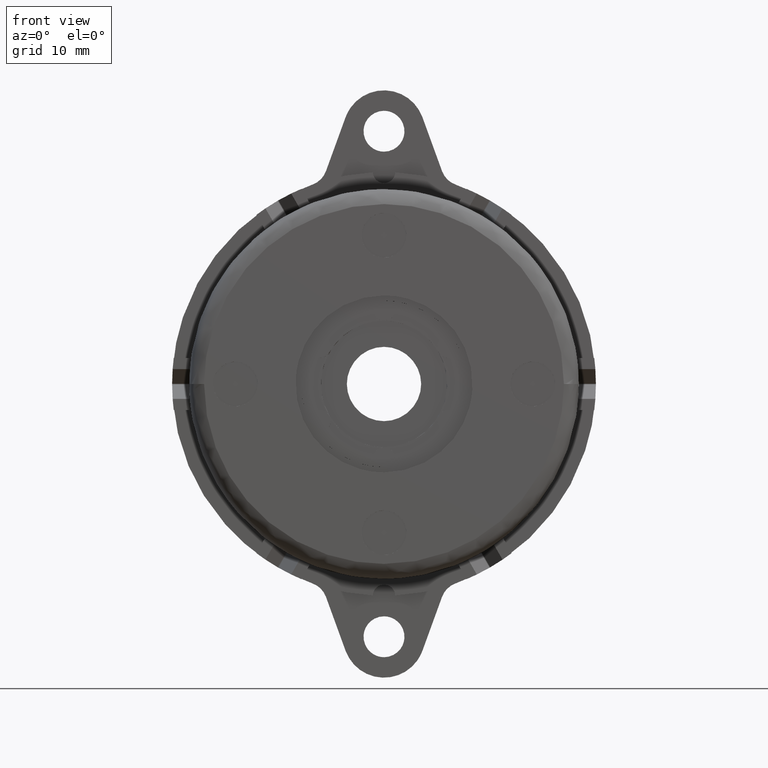
[diagram: clean part render]
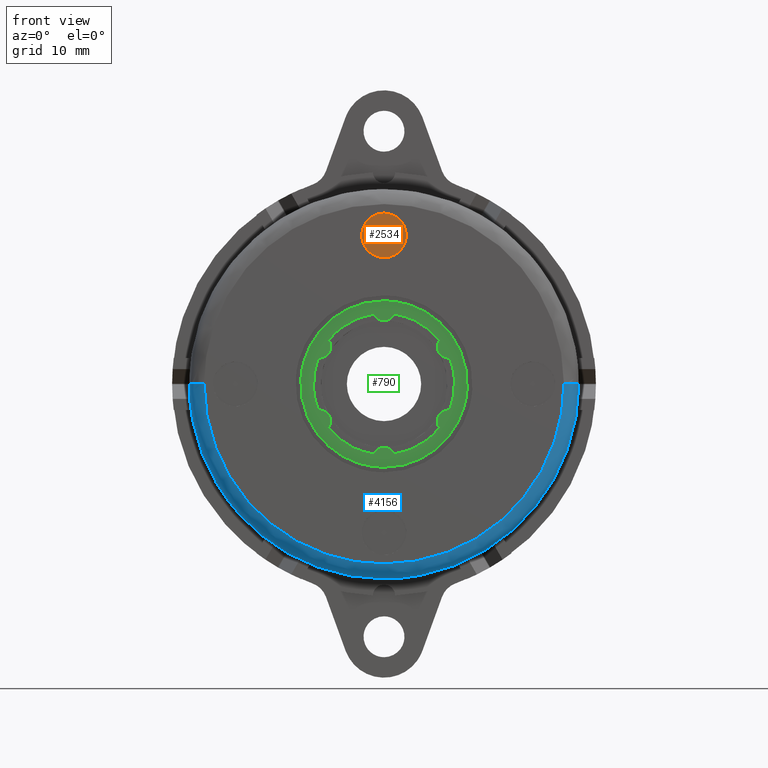
[diagram: same view with three faces highlighted in distinct colors, each labeled with its STEP entity id]
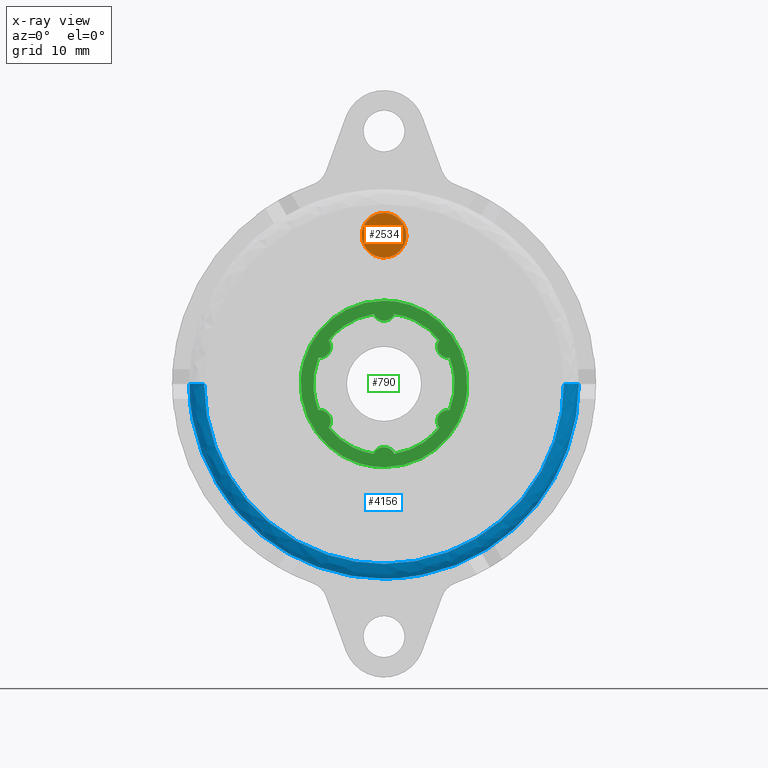
[diagram: x-ray of the same camera — body ghosted, the three highlighted faces saturated]
A machine part, front view with three faces highlighted in distinct colors.
The next image is the same camera in x-ray (body ghosted, the three faces saturated) — at least one of them is partly hidden behind the body in this view.
Their STEP definitions:

[orange] entity #2534 — the highlighted face is a freeform B-spline surface patch.
#2463=CARTESIAN_POINT('',(-3.299574351728865,-13.699999999999999,23.299699988370840));
#2464=CARTESIAN_POINT('',(3.299574137152144,-13.699999999999999,23.299699988370840));
#2465=CARTESIAN_POINT('',(-3.299574351728865,-13.699999999999999,16.700299850696620));
#2466=CARTESIAN_POINT('',(3.299574137152144,-13.699999999999999,16.700299850696620));
#2467=B_SPLINE_SURFACE_WITH_KNOTS('',1,1,((#2463,#2465),(#2464,#2466)),.UNSPECIFIED.,.F.,.F.,.U.,(2,2),(2,2),(0.0,6.599148488881010),(0.0,6.599400137674213),.UNSPECIFIED.);
#2468=CARTESIAN_POINT('',(0.0,-13.699999999999999,23.0));
#2469=VERTEX_POINT('',#2468);
#2470=CARTESIAN_POINT('',(-2.999885769189263,-13.699999999999999,19.973820393132449));
#2471=VERTEX_POINT('',#2470);
#2472=CARTESIAN_POINT('',(0.0,-13.699999999999999,23.0));
#2473=CARTESIAN_POINT('',(-3.0,-13.700000000000003,22.999999999999993));
#2474=CARTESIAN_POINT('',(-3.0,-13.699999999999999,20.0));
#2475=CARTESIAN_POINT('',(-3.000000000000000,-13.700000000000006,19.986909947351677));
#2476=CARTESIAN_POINT('',(-2.999885769189264,-13.699999999999999,19.973820393132456));
#2484=(BOUNDED_CURVE()B_SPLINE_CURVE(2,(#2472,#2473,#2474,#2475,#2476),.UNSPECIFIED.,.F.,.U.)B_SPLINE_CURVE_WITH_KNOTS((3,2,3),(0.0,0.250000000000000,0.251539894356854),.UNSPECIFIED.)CURVE()GEOMETRIC_REPRESENTATION_ITEM()RATIONAL_B_SPLINE_CURVE((1.0,0.707106781186548,1.0,0.998195901540753,0.996414028049799))REPRESENTATION_ITEM(''));
#2485=EDGE_CURVE('',#2469,#2471,#2484,.T.);
#2486=ORIENTED_EDGE('',*,*,#2485,.T.);
#2487=CARTESIAN_POINT('',(0.0,-13.699999999999999,17.0));
#2488=VERTEX_POINT('',#2487);
#2489=CARTESIAN_POINT('',(-2.999885769189264,-13.699999999999999,19.973820393132456));
#2490=CARTESIAN_POINT('',(-2.973933631415720,-13.700000000000001,17.0));
#2491=CARTESIAN_POINT('',(0.0,-13.699999999999999,17.0));
#2499=(BOUNDED_CURVE()B_SPLINE_CURVE(2,(#2489,#2490,#2491),.UNSPECIFIED.,.F.,.U.)B_SPLINE_CURVE_WITH_KNOTS((3,3),(0.251539894356854,0.500000000000000),.UNSPECIFIED.)CURVE()GEOMETRIC_REPRESENTATION_ITEM()RATIONAL_B_SPLINE_CURVE((0.996414028049799,0.708910879645795,1.0))REPRESENTATION_ITEM(''));
#2500=EDGE_CURVE('',#2471,#2488,#2499,.T.);
#2501=ORIENTED_EDGE('',*,*,#2500,.T.);
#2502=CARTESIAN_POINT('',(2.999885769189263,-13.699999999999999,20.026179606867551));
#2503=VERTEX_POINT('',#2502);
#2504=CARTESIAN_POINT('',(0.0,-13.699999999999999,17.0));
#2505=CARTESIAN_POINT('',(3.0,-13.700000000000003,17.000000000000004));
#2506=CARTESIAN_POINT('',(3.0,-13.699999999999999,20.0));
#2507=CARTESIAN_POINT('',(3.0,-13.700000000000003,20.013090052648330));
#2508=CARTESIAN_POINT('',(2.999885769189263,-13.700000000000005,20.026179606867554));
#2516=(BOUNDED_CURVE()B_SPLINE_CURVE(2,(#2504,#2505,#2506,#2507,#2508),.UNSPECIFIED.,.F.,.U.)B_SPLINE_CURVE_WITH_KNOTS((3,2,3),(0.500000000000000,0.750000000000000,0.751539894356855),.UNSPECIFIED.)CURVE()GEOMETRIC_REPRESENTATION_ITEM()RATIONAL_B_SPLINE_CURVE((1.0,0.707106781186548,1.0,0.998195901540752,0.996414028049798))REPRESENTATION_ITEM(''));
#2517=EDGE_CURVE('',#2488,#2503,#2516,.T.);
#2518=ORIENTED_EDGE('',*,*,#2517,.T.);
#2519=CARTESIAN_POINT('',(2.999885769189264,-13.699999999999996,20.026179606867558));
#2520=CARTESIAN_POINT('',(2.973933631415710,-13.700000000000003,22.999999999999996));
#2521=CARTESIAN_POINT('',(0.0,-13.699999999999999,23.0));
#2529=(BOUNDED_CURVE()B_SPLINE_CURVE(2,(#2519,#2520,#2521),.UNSPECIFIED.,.F.,.U.)B_SPLINE_CURVE_WITH_KNOTS((3,3),(0.751539894356855,1.0),.UNSPECIFIED.)CURVE()GEOMETRIC_REPRESENTATION_ITEM()RATIONAL_B_SPLINE_CURVE((0.996414028049797,0.708910879645795,1.0))REPRESENTATION_ITEM(''));
#2530=EDGE_CURVE('',#2503,#2469,#2529,.T.);
#2531=ORIENTED_EDGE('',*,*,#2530,.T.);
#2532=EDGE_LOOP('',(#2486,#2501,#2518,#2531));
#2533=FACE_OUTER_BOUND('',#2532,.T.);
#2534=ADVANCED_FACE('',(#2533),#2467,.F.);

[blue] entity #4156 — the highlighted face is a freeform B-spline surface patch.
#3880=CARTESIAN_POINT('',(-24.200000000614182,-13.800000000000001,-1.770490E-015));
#3881=VERTEX_POINT('',#3880);
#3895=CARTESIAN_POINT('',(0.0,-13.800000000000001,-24.199999999999999));
#3896=VERTEX_POINT('',#3895);
#3897=CARTESIAN_POINT('',(-24.200000000614182,-13.800000000000001,-1.770490E-015));
#3898=CARTESIAN_POINT('',(-24.200000000307082,-13.799999999999999,-24.199999999999996));
#3899=CARTESIAN_POINT('',(0.0,-13.800000000000001,-24.199999999999999));
#3907=(BOUNDED_CURVE()B_SPLINE_CURVE(2,(#3897,#3898,#3899),.UNSPECIFIED.,.F.,.U.)B_SPLINE_CURVE_WITH_KNOTS((3,3),(0.250000000000000,0.500000000000000),.UNSPECIFIED.)CURVE()GEOMETRIC_REPRESENTATION_ITEM()RATIONAL_B_SPLINE_CURVE((1.0,0.707106781186548,1.0))REPRESENTATION_ITEM(''));
#3908=EDGE_CURVE('',#3881,#3896,#3907,.T.);
#3910=CARTESIAN_POINT('',(24.200000000614182,-13.800000000000001,2.634884E-016));
#3911=VERTEX_POINT('',#3910);
#3912=CARTESIAN_POINT('',(0.0,-13.800000000000001,-24.199999999999999));
#3913=CARTESIAN_POINT('',(24.200000000307082,-13.799999999999999,-24.199999999999996));
#3914=CARTESIAN_POINT('',(24.200000000614182,-13.800000000000001,2.634884E-016));
#3922=(BOUNDED_CURVE()B_SPLINE_CURVE(2,(#3912,#3913,#3914),.UNSPECIFIED.,.F.,.U.)B_SPLINE_CURVE_WITH_KNOTS((3,3),(0.500000000000000,0.750000000000000),.UNSPECIFIED.)CURVE()GEOMETRIC_REPRESENTATION_ITEM()RATIONAL_B_SPLINE_CURVE((1.0,0.707106781186548,1.0))REPRESENTATION_ITEM(''));
#3923=EDGE_CURVE('',#3896,#3911,#3922,.T.);
#4002=CARTESIAN_POINT('',(26.199999999999999,-11.800000000098020,5.284502E-015));
#4003=VERTEX_POINT('',#4002);
#4004=CARTESIAN_POINT('',(24.200000000614178,-13.800000000000001,5.269768E-016));
#4005=CARTESIAN_POINT('',(26.199999999901983,-13.799999999385816,2.816352E-015));
#4006=CARTESIAN_POINT('',(26.199999999999989,-11.800000000098017,3.463576E-015));
#4014=(BOUNDED_CURVE()B_SPLINE_CURVE(2,(#4004,#4005,#4006),.UNSPECIFIED.,.F.,.U.)B_SPLINE_CURVE_WITH_KNOTS((3,3),(-1.736413120754341,-0.276558718065689),.UNSPECIFIED.)CURVE()GEOMETRIC_REPRESENTATION_ITEM()RATIONAL_B_SPLINE_CURVE((0.888510408948525,0.626638727302599,0.883897567120881))REPRESENTATION_ITEM(''));
#4015=EDGE_CURVE('',#3911,#4003,#4014,.T.);
#4047=CARTESIAN_POINT('',(-26.199999999999999,-11.800000000098020,-1.770216E-015));
#4048=VERTEX_POINT('',#4047);
#4062=CARTESIAN_POINT('',(-24.200000000614171,-13.800000000000002,-3.540981E-015));
#4063=CARTESIAN_POINT('',(-26.199999999901966,-13.799999999385818,-3.497002E-015));
#4064=CARTESIAN_POINT('',(-26.199999999999999,-11.800000000098025,-3.540432E-015));
#4072=(BOUNDED_CURVE()B_SPLINE_CURVE(2,(#4062,#4063,#4064),.UNSPECIFIED.,.F.,.U.)B_SPLINE_CURVE_WITH_KNOTS((3,3),(-1.736413120754343,-0.276558718065691),.UNSPECIFIED.)CURVE()GEOMETRIC_REPRESENTATION_ITEM()RATIONAL_B_SPLINE_CURVE((0.888510408948525,0.626638727302599,0.883897567120880))REPRESENTATION_ITEM(''));
#4073=EDGE_CURVE('',#3881,#4048,#4072,.T.);
#4078=CARTESIAN_POINT('',(24.061298849070688,-13.795184700906377,0.672675420448867));
#4079=CARTESIAN_POINT('',(24.061298849070678,-13.795184700906381,0.338296456843512));
#4080=CARTESIAN_POINT('',(24.061298849070685,-13.795184700906379,-24.061298849070667));
#4081=CARTESIAN_POINT('',(2.946562E-015,-13.795184700906375,-24.061298849070685));
#4082=CARTESIAN_POINT('',(-24.061298849070667,-13.795184700906379,-24.061298849070685));
#4083=CARTESIAN_POINT('',(-24.061298849070674,-13.795184700906379,0.338296456843513));
#4084=CARTESIAN_POINT('',(-24.061298849070681,-13.795184700906372,0.672675420448876));
#4085=CARTESIAN_POINT('',(26.355478543839929,-13.954671370966850,0.736813200393517));
#4086=CARTESIAN_POINT('',(26.355478543839933,-13.954671370966851,0.370552108002291));
#4087=CARTESIAN_POINT('',(26.355478543839943,-13.954671370966851,-26.355478543839919));
#4088=CARTESIAN_POINT('',(3.227509E-015,-13.954671370966851,-26.355478543839933));
#4089=CARTESIAN_POINT('',(-26.355478543839919,-13.954671370966851,-26.355478543839943));
#4090=CARTESIAN_POINT('',(-26.355478543839926,-13.954671370966851,0.370552108002293));
#4091=CARTESIAN_POINT('',(-26.355478543839926,-13.954671370966851,0.736813200393527));
#4092=CARTESIAN_POINT('',(26.195132611118510,-11.660551572072686,0.732330451212468));
#4093=CARTESIAN_POINT('',(26.195132611118503,-11.660551572072681,0.368297680207300));
#4094=CARTESIAN_POINT('',(26.195132611118506,-11.660551572072682,-26.195132611118506));
#4095=CARTESIAN_POINT('',(3.207873E-015,-11.660551572072679,-26.195132611118510));
#4096=CARTESIAN_POINT('',(-26.195132611118506,-11.660551572072682,-26.195132611118506));
#4097=CARTESIAN_POINT('',(-26.195132611118503,-11.660551572072679,0.368297680207302));
#4098=CARTESIAN_POINT('',(-26.195132611118503,-11.660551572072684,0.732330451212478));
#4106=(BOUNDED_SURFACE()B_SPLINE_SURFACE(2,2,((#4078,#4085,#4092),(#4079,#4086,#4093),(#4080,#4087,#4094),(#4081,#4088,#4095),(#4082,#4089,#4096),(#4083,#4090,#4097),(#4084,#4091,#4098)),.UNSPECIFIED.,.F.,.F.,.U.)B_SPLINE_SURFACE_WITH_KNOTS((3,1,2,1,3),(3,3),(0.0,0.868030335654944,44.269547118403068,87.671063901151200,88.539094236806150),(0.0,3.645454353994036),.UNSPECIFIED.)GEOMETRIC_REPRESENTATION_ITEM()RATIONAL_B_SPLINE_SURFACE(((0.926697838400259,0.606435486919035,0.921564728292852),(0.921332230155912,0.602924207283492,0.916228840909793),(0.647686209694202,0.423848945870745,0.644098584373797),(0.915966621911565,0.599412927647948,0.910892953526734),(0.647686209694202,0.423848945870745,0.644098584373797),(0.921332230155912,0.602924207283492,0.916228840909793),(0.926697838400259,0.606435486919036,0.921564728292852)))REPRESENTATION_ITEM('')SURFACE());
#4107=ORIENTED_EDGE('',*,*,#3908,.F.);
#4108=ORIENTED_EDGE('',*,*,#4073,.T.);
#4109=CARTESIAN_POINT('',(-22.434830887205919,-11.800000000069669,-13.532123375966020));
#4110=VERTEX_POINT('',#4109);
#4111=CARTESIAN_POINT('',(-22.434830887205926,-11.800000000069669,-13.532123375966023));
#4112=CARTESIAN_POINT('',(-26.199999999999136,-11.800000000086385,-7.289870777438365));
#4113=CARTESIAN_POINT('',(-26.199999999999999,-11.800000000098020,-1.770216E-015));
#4121=(BOUNDED_CURVE()B_SPLINE_CURVE(2,(#4111,#4112,#4113),.UNSPECIFIED.,.F.,.U.)B_SPLINE_CURVE_WITH_KNOTS((3,3),(0.661793393350524,0.750000000000000),.UNSPECIFIED.)CURVE()GEOMETRIC_REPRESENTATION_ITEM()RATIONAL_B_SPLINE_CURVE((0.866241560394162,0.896659532231292,1.0))REPRESENTATION_ITEM(''));
#4122=EDGE_CURVE('',#4110,#4048,#4121,.T.);
#4123=ORIENTED_EDGE('',*,*,#4122,.F.);
#4124=CARTESIAN_POINT('',(0.0,-11.800000000000001,-26.199999999999999));
#4125=VERTEX_POINT('',#4124);
#4126=CARTESIAN_POINT('',(0.0,-11.800000000000001,-26.199999999999999));
#4127=CARTESIAN_POINT('',(-14.793887648107598,-11.800000000029677,-26.199999999999484));
#4128=CARTESIAN_POINT('',(-22.434830887205926,-11.800000000069669,-13.532123375966023));
#4136=(BOUNDED_CURVE()B_SPLINE_CURVE(2,(#4126,#4127,#4128),.UNSPECIFIED.,.F.,.U.)B_SPLINE_CURVE_WITH_KNOTS((3,3),(0.500000000000000,0.661793393350524),.UNSPECIFIED.)CURVE()GEOMETRIC_REPRESENTATION_ITEM()RATIONAL_B_SPLINE_CURVE((1.0,0.810447248955256,0.866241560394162))REPRESENTATION_ITEM(''));
#4137=EDGE_CURVE('',#4125,#4110,#4136,.T.);
#4138=ORIENTED_EDGE('',*,*,#4137,.F.);
#4139=CARTESIAN_POINT('',(26.199999999999996,-11.800000000098011,5.284502E-015));
#4140=CARTESIAN_POINT('',(26.199999999999999,-11.800000000049007,-26.199999999999999));
#4141=CARTESIAN_POINT('',(0.0,-11.800000000000001,-26.199999999999999));
#4149=(BOUNDED_CURVE()B_SPLINE_CURVE(2,(#4139,#4140,#4141),.UNSPECIFIED.,.F.,.U.)B_SPLINE_CURVE_WITH_KNOTS((3,3),(0.250000000000000,0.500000000000000),.UNSPECIFIED.)CURVE()GEOMETRIC_REPRESENTATION_ITEM()RATIONAL_B_SPLINE_CURVE((1.000000000000000,0.707106781186547,1.0))REPRESENTATION_ITEM(''));
#4150=EDGE_CURVE('',#4003,#4125,#4149,.T.);
#4151=ORIENTED_EDGE('',*,*,#4150,.F.);
#4152=ORIENTED_EDGE('',*,*,#4015,.F.);
#4153=ORIENTED_EDGE('',*,*,#3923,.F.);
#4154=EDGE_LOOP('',(#4107,#4108,#4123,#4138,#4151,#4152,#4153));
#4155=FACE_OUTER_BOUND('',#4154,.T.);
#4156=ADVANCED_FACE('',(#4155),#4106,.T.);

[green] entity #790 — the highlighted face is a freeform B-spline surface patch.
#485=CARTESIAN_POINT('',(11.179109917648891,-13.0,-0.683740776256623));
#486=VERTEX_POINT('',#485);
#492=CARTESIAN_POINT('',(0.0,-13.0,-11.199999999999999));
#493=VERTEX_POINT('',#492);
#494=CARTESIAN_POINT('',(0.0,-13.0,-11.199999999999999));
#495=CARTESIAN_POINT('',(10.535910655997087,-13.0,-11.199999999999989));
#496=CARTESIAN_POINT('',(11.179109917648885,-13.0,-0.683740776256623));
#504=(BOUNDED_CURVE()B_SPLINE_CURVE(2,(#494,#495,#496),.UNSPECIFIED.,.F.,.U.)B_SPLINE_CURVE_WITH_KNOTS((3,3),(0.500000000000000,0.739333006486209),.UNSPECIFIED.)CURVE()GEOMETRIC_REPRESENTATION_ITEM()RATIONAL_B_SPLINE_CURVE((1.0,0.719603941447814,0.976072136497049))REPRESENTATION_ITEM(''));
#505=EDGE_CURVE('',#493,#486,#504,.T.);
#507=CARTESIAN_POINT('',(-11.179109917648891,-13.0,0.683740776256623));
#508=VERTEX_POINT('',#507);
#509=CARTESIAN_POINT('',(-11.179109917648885,-13.0,0.683740776256623));
#510=CARTESIAN_POINT('',(-11.200000000000003,-13.000000000000002,0.342189511658595));
#511=CARTESIAN_POINT('',(-11.199999999999999,-13.0,0.0));
#512=CARTESIAN_POINT('',(-11.199999999999999,-13.0,-11.199999999999999));
#513=CARTESIAN_POINT('',(0.0,-13.0,-11.199999999999999));
#521=(BOUNDED_CURVE()B_SPLINE_CURVE(2,(#509,#510,#511,#512,#513),.UNSPECIFIED.,.F.,.U.)B_SPLINE_CURVE_WITH_KNOTS((3,2,3),(0.239333006486209,0.250000000000000,0.500000000000000),.UNSPECIFIED.)CURVE()GEOMETRIC_REPRESENTATION_ITEM()RATIONAL_B_SPLINE_CURVE((0.976072136497049,0.987502839738734,1.0,0.707106781186547,1.0))REPRESENTATION_ITEM(''));
#522=EDGE_CURVE('',#508,#493,#521,.T.);
#552=CARTESIAN_POINT('',(0.0,-13.0,11.199999999999999));
#553=VERTEX_POINT('',#552);
#554=CARTESIAN_POINT('',(0.0,-13.0,11.199999999999999));
#555=CARTESIAN_POINT('',(-10.535910655997272,-13.0,11.199999999999999));
#556=CARTESIAN_POINT('',(-11.179109917649255,-13.0,0.683740776256644));
#564=(BOUNDED_CURVE()B_SPLINE_CURVE(2,(#554,#555,#556),.UNSPECIFIED.,.F.,.U.)B_SPLINE_CURVE_WITH_KNOTS((3,3),(0.0,0.239333006486209),.UNSPECIFIED.)CURVE()GEOMETRIC_REPRESENTATION_ITEM()RATIONAL_B_SPLINE_CURVE((1.0,0.719603941447814,0.976072136497049))REPRESENTATION_ITEM(''));
#565=EDGE_CURVE('',#553,#508,#564,.T.);
#567=CARTESIAN_POINT('',(11.179109917648885,-13.0,-0.683740776256623));
#568=CARTESIAN_POINT('',(11.199999999999639,-13.000000000000002,-0.342189511658575));
#569=CARTESIAN_POINT('',(11.199999999999640,-13.0,1.852970E-014));
#570=CARTESIAN_POINT('',(11.199999999999825,-13.0,11.200000000000008));
#571=CARTESIAN_POINT('',(0.0,-13.0,11.199999999999999));
#579=(BOUNDED_CURVE()B_SPLINE_CURVE(2,(#567,#568,#569,#570,#571),.UNSPECIFIED.,.F.,.U.)B_SPLINE_CURVE_WITH_KNOTS((3,2,3),(0.739333006486209,0.750000000000000,1.0),.UNSPECIFIED.)CURVE()GEOMETRIC_REPRESENTATION_ITEM()RATIONAL_B_SPLINE_CURVE((0.976072136497049,0.987502839738734,1.0,0.707106781186547,1.0))REPRESENTATION_ITEM(''));
#580=EDGE_CURVE('',#486,#553,#579,.T.);
#587=CARTESIAN_POINT('',(-12.318604337862910,-13.0,12.318879956584460));
#588=CARTESIAN_POINT('',(12.318603937319700,-13.0,12.318879956584460));
#589=CARTESIAN_POINT('',(-12.318604337862910,-13.0,-12.318880557399270));
#590=CARTESIAN_POINT('',(12.318603937319700,-13.0,-12.318880557399270));
#591=B_SPLINE_SURFACE_WITH_KNOTS('',1,1,((#587,#589),(#588,#590)),.UNSPECIFIED.,.F.,.F.,.U.,(2,2),(2,2),(0.0,24.637208275182601),(0.0,24.637760513983729),.UNSPECIFIED.);
#592=ORIENTED_EDGE('',*,*,#565,.T.);
#593=ORIENTED_EDGE('',*,*,#522,.T.);
#594=ORIENTED_EDGE('',*,*,#505,.T.);
#595=ORIENTED_EDGE('',*,*,#580,.T.);
#596=EDGE_LOOP('',(#592,#593,#594,#595));
#597=FACE_OUTER_BOUND('',#596,.T.);
#598=CARTESIAN_POINT('',(8.828025771227599,-13.0,-3.509413560046385));
#599=VERTEX_POINT('',#598);
#600=CARTESIAN_POINT('',(7.453246806070260,-13.0,-5.890595220162680));
#601=VERTEX_POINT('',#600);
#602=CARTESIAN_POINT('',(8.828025771227599,-13.0,-3.509413560046385));
#603=CARTESIAN_POINT('',(8.675035331491854,-12.999999999999950,-3.492137092975311));
#604=CARTESIAN_POINT('',(8.336201748729915,-13.000000000000080,-3.506360021192486));
#605=CARTESIAN_POINT('',(7.942465804450392,-12.999999999999989,-3.662179762866693));
#606=CARTESIAN_POINT('',(7.628999659451365,-12.999999999999920,-3.895560704761700));
#607=CARTESIAN_POINT('',(7.387375340588898,-13.000000000000130,-4.169387996967331));
#608=CARTESIAN_POINT('',(7.199125239577295,-12.999999999999909,-4.566981287655796));
#609=CARTESIAN_POINT('',(7.144029511932810,-12.999999999999989,-4.975697141246354));
#610=CARTESIAN_POINT('',(7.199340743325852,-13.0,-5.436626156677131));
#611=CARTESIAN_POINT('',(7.329317870152239,-12.999999999999989,-5.723093501467343));
#612=CARTESIAN_POINT('',(7.453246806070260,-13.0,-5.890595220162680));
#613=B_SPLINE_CURVE_WITH_KNOTS('',3,(#602,#603,#604,#605,#606,#607,#608,#609,#610,#611,#612),.UNSPECIFIED.,.F.,.U.,(4,1,1,1,1,1,1,1,4),(0.000000275835277,0.461899947393348,1.005340049102344,1.249881114639298,1.630313793802961,2.092172964395616,2.554091621408885,2.852987047435019,3.477909533025661),.UNSPECIFIED.);
#614=EDGE_CURVE('',#599,#601,#613,.T.);
#615=ORIENTED_EDGE('',*,*,#614,.T.);
#616=CARTESIAN_POINT('',(1.374772708486750,-13.0,-9.400000000000000));
#617=VERTEX_POINT('',#616);
#618=CARTESIAN_POINT('',(1.374772708486747,-13.0,-9.400000000000000));
#619=CARTESIAN_POINT('',(5.111557032091199,-13.000000000000004,-8.853486265362500));
#620=CARTESIAN_POINT('',(7.453246806070264,-13.0,-5.890595220162681));
#628=(BOUNDED_CURVE()B_SPLINE_CURVE(2,(#618,#619,#620),.UNSPECIFIED.,.F.,.U.)CURVE()GEOMETRIC_REPRESENTATION_ITEM()QUASI_UNIFORM_CURVE()RATIONAL_B_SPLINE_CURVE((1.0,0.929265981943491,1.0))REPRESENTATION_ITEM(''));
#629=EDGE_CURVE('',#617,#601,#628,.T.);
#630=ORIENTED_EDGE('',*,*,#629,.F.);
#631=CARTESIAN_POINT('',(-1.374772708486754,-13.0,-9.400000000000000));
#632=VERTEX_POINT('',#631);
#633=CARTESIAN_POINT('',(1.374772708486750,-13.0,-9.400000000000000));
#634=CARTESIAN_POINT('',(1.324084585594158,-13.000000000000030,-9.283782265766428));
#635=CARTESIAN_POINT('',(1.202346342338203,-12.999999999999959,-9.080008181153019));
#636=CARTESIAN_POINT('',(0.947676255893653,-13.000000000000041,-8.819331197575622));
#637=CARTESIAN_POINT('',(0.623106618785294,-12.999999999999989,-8.615113964584067));
#638=CARTESIAN_POINT('',(0.219660133157898,-13.000000000000011,-8.494774708990494));
#639=CARTESIAN_POINT('',(-0.201354624260763,-12.999999999999989,-8.494798192059571));
#640=CARTESIAN_POINT('',(-0.561930112301870,-12.999999999999980,-8.595298683450135));
#641=CARTESIAN_POINT('',(-0.889805446366025,-13.000000000000290,-8.773576972471428));
#642=CARTESIAN_POINT('',(-1.172952772250283,-12.999999999999099,-9.033536171426086));
#643=CARTESIAN_POINT('',(-1.320473609110518,-13.000000000000970,-9.275477164414834));
#644=CARTESIAN_POINT('',(-1.374772708486754,-13.0,-9.400000000000000));
#645=B_SPLINE_CURVE_WITH_KNOTS('',3,(#633,#634,#635,#636,#637,#638,#639,#640,#641,#642,#643,#644),.UNSPECIFIED.,.F.,.U.,(4,1,1,1,1,1,1,1,1,4),(0.000000275511863,0.380368677184074,0.706437269278076,1.086854286381423,1.521583490566907,1.956302283624610,2.336695731053410,2.635587949282468,3.070347930099244,3.477885982512841),.UNSPECIFIED.);
#646=EDGE_CURVE('',#617,#632,#645,.T.);
#647=ORIENTED_EDGE('',*,*,#646,.T.);
#648=CARTESIAN_POINT('',(-7.453251799453169,-13.0,-5.890592692467630));
#649=VERTEX_POINT('',#648);
#650=CARTESIAN_POINT('',(-7.453251799453169,-13.0,-5.890592692467630));
#651=CARTESIAN_POINT('',(-5.111560864079936,-12.999999999999996,-8.853486568409645));
#652=CARTESIAN_POINT('',(-1.374772708486754,-13.0,-9.400000000000000));
#660=(BOUNDED_CURVE()B_SPLINE_CURVE(2,(#650,#651,#652),.UNSPECIFIED.,.F.,.U.)CURVE()GEOMETRIC_REPRESENTATION_ITEM()QUASI_UNIFORM_CURVE()RATIONAL_B_SPLINE_CURVE((1.0,0.929265883187792,1.0))REPRESENTATION_ITEM(''));
#661=EDGE_CURVE('',#649,#632,#660,.T.);
#662=ORIENTED_EDGE('',*,*,#661,.F.);
#663=CARTESIAN_POINT('',(-8.828024976885221,-13.0,-3.509412345035960));
#664=VERTEX_POINT('',#663);
#665=CARTESIAN_POINT('',(-7.453251799453169,-13.0,-5.890592692467630));
#666=CARTESIAN_POINT('',(-7.372553137510462,-13.000000000000011,-5.781300459816499));
#667=CARTESIAN_POINT('',(-7.267483262279780,-13.0,-5.588733999933198));
#668=CARTESIAN_POINT('',(-7.173785812347925,-13.0,-5.265832172302614));
#669=CARTESIAN_POINT('',(-7.141792471816832,-13.000000000000011,-4.884100385365834));
#670=CARTESIAN_POINT('',(-7.240285473118935,-13.0,-4.434444933976320));
#671=CARTESIAN_POINT('',(-7.475419773849472,-13.000000000000011,-4.051839621742724));
#672=CARTESIAN_POINT('',(-7.733624288836859,-12.999999999999980,-3.807766707480313));
#673=CARTESIAN_POINT('',(-7.972772580085616,-12.999999999999980,-3.658474856763510));
#674=CARTESIAN_POINT('',(-8.326334998242222,-13.000000000000011,-3.514696123896424));
#675=CARTESIAN_POINT('',(-8.621000962009507,-13.000000000000250,-3.485819849016291));
#676=CARTESIAN_POINT('',(-8.828024976885221,-13.0,-3.509412345035960));
#677=B_SPLINE_CURVE_WITH_KNOTS('',3,(#665,#666,#667,#668,#669,#670,#671,#672,#673,#674,#675,#676),.UNSPECIFIED.,.F.,.U.,(4,1,1,1,1,1,1,1,1,4),(0.000000275514633,0.407560369440920,0.652097168702870,1.005336018874355,1.548786866671690,2.010644016979710,2.336702187296135,2.608423879358851,2.852975611332925,3.477895591969892),.UNSPECIFIED.);
#678=EDGE_CURVE('',#649,#664,#677,.T.);
#679=ORIENTED_EDGE('',*,*,#678,.T.);
#680=CARTESIAN_POINT('',(-8.828024976885210,-13.0,3.509412345035970));
#681=VERTEX_POINT('',#680);
#682=CARTESIAN_POINT('',(-8.828024976885210,-13.0,3.509412345035971));
#683=CARTESIAN_POINT('',(-10.223124678091114,-13.000000000000005,9.974660E-015));
#684=CARTESIAN_POINT('',(-8.828024976885217,-13.0,-3.509412345035954));
#692=(BOUNDED_CURVE()B_SPLINE_CURVE(2,(#682,#683,#684),.UNSPECIFIED.,.F.,.U.)CURVE()GEOMETRIC_REPRESENTATION_ITEM()QUASI_UNIFORM_CURVE()RATIONAL_B_SPLINE_CURVE((1.0,0.929265787040549,1.0))REPRESENTATION_ITEM(''));
#693=EDGE_CURVE('',#681,#664,#692,.T.);
#694=ORIENTED_EDGE('',*,*,#693,.F.);
#695=CARTESIAN_POINT('',(-7.453246806070260,-13.0,5.890595220162680));
#696=VERTEX_POINT('',#695);
#697=CARTESIAN_POINT('',(-8.828024976885210,-13.0,3.509412345035970));
#698=CARTESIAN_POINT('',(-8.630003225753818,-13.000000000000020,3.486897861865355));
#699=CARTESIAN_POINT('',(-8.344817221480360,-12.999999999999989,3.512172663358983));
#700=CARTESIAN_POINT('',(-7.954768652767862,-13.0,3.662559173199611));
#701=CARTESIAN_POINT('',(-7.665218316936781,-13.000000000000050,3.854439748494451));
#702=CARTESIAN_POINT('',(-7.405528714819139,-12.999999999999980,4.148862406543844));
#703=CARTESIAN_POINT('',(-7.219708703891842,-13.000000000000030,4.515296223438074));
#704=CARTESIAN_POINT('',(-7.135484272843196,-12.999999999999920,4.956392184702350));
#705=CARTESIAN_POINT('',(-7.199068676389588,-12.999999999999989,5.447923351695138));
#706=CARTESIAN_POINT('',(-7.350970851634998,-13.000000000000149,5.752187033469756));
#707=CARTESIAN_POINT('',(-7.453246806070260,-13.0,5.890595220162680));
#708=B_SPLINE_CURVE_WITH_KNOTS('',3,(#697,#698,#699,#700,#701,#702,#703,#704,#705,#706,#707),.UNSPECIFIED.,.F.,.U.,(4,1,1,1,1,1,1,1,4),(0.000000274834859,0.597760676240784,0.842303879689883,1.249877282152771,1.630308795333222,2.010645914263741,2.472565998150095,2.961654440116945,3.477898871680508),.UNSPECIFIED.);
#709=EDGE_CURVE('',#681,#696,#708,.T.);
#710=ORIENTED_EDGE('',*,*,#709,.T.);
#711=CARTESIAN_POINT('',(-1.374772708486750,-13.0,9.400000000000000));
#712=VERTEX_POINT('',#711);
#713=CARTESIAN_POINT('',(-1.374772708486752,-13.0,9.399999999999999));
#714=CARTESIAN_POINT('',(-5.111557032091200,-13.000000000000005,8.853486265362497));
#715=CARTESIAN_POINT('',(-7.453246806070264,-13.0,5.890595220162679));
#723=(BOUNDED_CURVE()B_SPLINE_CURVE(2,(#713,#714,#715),.UNSPECIFIED.,.F.,.U.)CURVE()GEOMETRIC_REPRESENTATION_ITEM()QUASI_UNIFORM_CURVE()RATIONAL_B_SPLINE_CURVE((1.0,0.929265981943490,1.0))REPRESENTATION_ITEM(''));
#724=EDGE_CURVE('',#712,#696,#723,.T.);
#725=ORIENTED_EDGE('',*,*,#724,.F.);
#726=CARTESIAN_POINT('',(1.374772708486752,-13.0,9.400000000000000));
#727=VERTEX_POINT('',#726);
#728=CARTESIAN_POINT('',(-1.374772708486750,-13.0,9.400000000000000));
#729=CARTESIAN_POINT('',(-1.320464889322589,-12.999999999999970,9.275473512669677));
#730=CARTESIAN_POINT('',(-1.172956703566199,-13.000000000000030,9.033531471712401));
#731=CARTESIAN_POINT('',(-0.862834762753736,-13.000000000000011,8.748792542551396));
#732=CARTESIAN_POINT('',(-0.502754881053645,-12.999999999999959,8.569582162360367));
#733=CARTESIAN_POINT('',(-0.172623601189630,-13.000000000000069,8.499839627905145));
#734=CARTESIAN_POINT('',(0.172676307432059,-12.999999999999890,8.496673943027883));
#735=CARTESIAN_POINT('',(0.512269191954212,-13.000000000000160,8.571656291240180));
#736=CARTESIAN_POINT('',(0.843927711058972,-12.999999999999780,8.744380276157074));
#737=CARTESIAN_POINT('',(1.148867688979046,-13.000000000000400,9.004587331570837));
#738=CARTESIAN_POINT('',(1.306056192818462,-12.999999999999581,9.242214477692976));
#739=CARTESIAN_POINT('',(1.374772708486752,-13.0,9.400000000000000));
#740=B_SPLINE_CURVE_WITH_KNOTS('',3,(#728,#729,#730,#731,#732,#733,#734,#735,#736,#737,#738,#739),.UNSPECIFIED.,.F.,.U.,(4,1,1,1,1,1,1,1,1,4),(0.000000275513182,0.407559243270030,0.842300758825690,1.249872650883974,1.603107089204180,1.847586467086298,2.282360912518925,2.635587949282503,2.961643465106747,3.477885982512848),.UNSPECIFIED.);
#741=EDGE_CURVE('',#712,#727,#740,.T.);
#742=ORIENTED_EDGE('',*,*,#741,.T.);
#743=CARTESIAN_POINT('',(7.453241799453250,-13.0,5.890592692467591));
#744=VERTEX_POINT('',#743);
#745=CARTESIAN_POINT('',(7.453241799453250,-13.0,5.890592692467591));
#746=CARTESIAN_POINT('',(5.111554234003308,-12.999999999999998,8.853484655608103));
#747=CARTESIAN_POINT('',(1.374772708486752,-13.0,9.400000000000000));
#755=(BOUNDED_CURVE()B_SPLINE_CURVE(2,(#745,#746,#747),.UNSPECIFIED.,.F.,.U.)CURVE()GEOMETRIC_REPRESENTATION_ITEM()QUASI_UNIFORM_CURVE()RATIONAL_B_SPLINE_CURVE((1.0,0.929266003744744,1.0))REPRESENTATION_ITEM(''));
#756=EDGE_CURVE('',#744,#727,#755,.T.);
#757=ORIENTED_EDGE('',*,*,#756,.F.);
#758=CARTESIAN_POINT('',(8.828025096117480,-13.0,3.509413484053715));
#759=VERTEX_POINT('',#758);
#760=CARTESIAN_POINT('',(7.453241799453250,-13.0,5.890592692467591));
#761=CARTESIAN_POINT('',(7.361775572676687,-13.000000000000030,5.766735979258121));
#762=CARTESIAN_POINT('',(7.217473392921457,-12.999999999999970,5.490558433174445));
#763=CARTESIAN_POINT('',(7.142984740883532,-13.000000000000030,5.066297847050803));
#764=CARTESIAN_POINT('',(7.177835943401264,-12.999999999999940,4.712319657921025));
#765=CARTESIAN_POINT('',(7.268314056296600,-13.000000000000030,4.416923309313582));
#766=CARTESIAN_POINT('',(7.434618496476259,-13.000000000000011,4.102922487422815));
#767=CARTESIAN_POINT('',(7.712550559997685,-13.000000000000020,3.809986424394396));
#768=CARTESIAN_POINT('',(8.084587675993340,-12.999999999999970,3.596063231853346));
#769=CARTESIAN_POINT('',(8.455682795081064,-13.000000000000080,3.497680487972694));
#770=CARTESIAN_POINT('',(8.711032604543879,-12.999999999999901,3.496224648611465));
#771=CARTESIAN_POINT('',(8.828025096117480,-13.0,3.509413484053715));
#772=B_SPLINE_CURVE_WITH_KNOTS('',3,(#760,#761,#762,#763,#764,#765,#766,#767,#768,#769,#770,#771),.UNSPECIFIED.,.F.,.U.,(4,1,1,1,1,1,1,1,1,4),(0.000000275521624,0.461899448005942,0.923821065234395,1.277067498355848,1.521592149871847,1.847596981445741,2.336709029253218,2.717121381235929,3.124703406367486,3.477905775521555),.UNSPECIFIED.);
#773=EDGE_CURVE('',#744,#759,#772,.T.);
#774=ORIENTED_EDGE('',*,*,#773,.T.);
#775=CARTESIAN_POINT('',(8.828025771227599,-13.0,-3.509413560046385));
#776=CARTESIAN_POINT('',(10.223125872303402,-13.000000000000004,-0.000000024869446));
#777=CARTESIAN_POINT('',(8.828025096117480,-13.0,3.509413484053715));
#785=(BOUNDED_CURVE()B_SPLINE_CURVE(2,(#775,#776,#777),.UNSPECIFIED.,.F.,.U.)CURVE()GEOMETRIC_REPRESENTATION_ITEM()QUASI_UNIFORM_CURVE()RATIONAL_B_SPLINE_CURVE((1.0,0.929265751070868,1.0))REPRESENTATION_ITEM(''));
#786=EDGE_CURVE('',#599,#759,#785,.T.);
#787=ORIENTED_EDGE('',*,*,#786,.F.);
#788=EDGE_LOOP('',(#615,#630,#647,#662,#679,#694,#710,#725,#742,#757,#774,#787));
#789=FACE_BOUND('',#788,.T.);
#790=ADVANCED_FACE('',(#597,#789),#591,.F.);